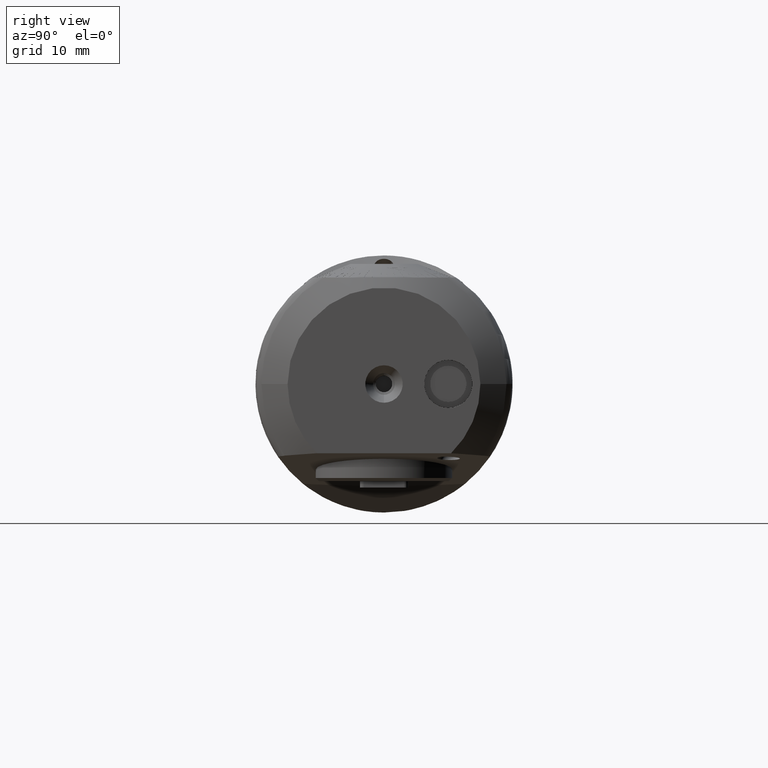
[diagram: clean part render]
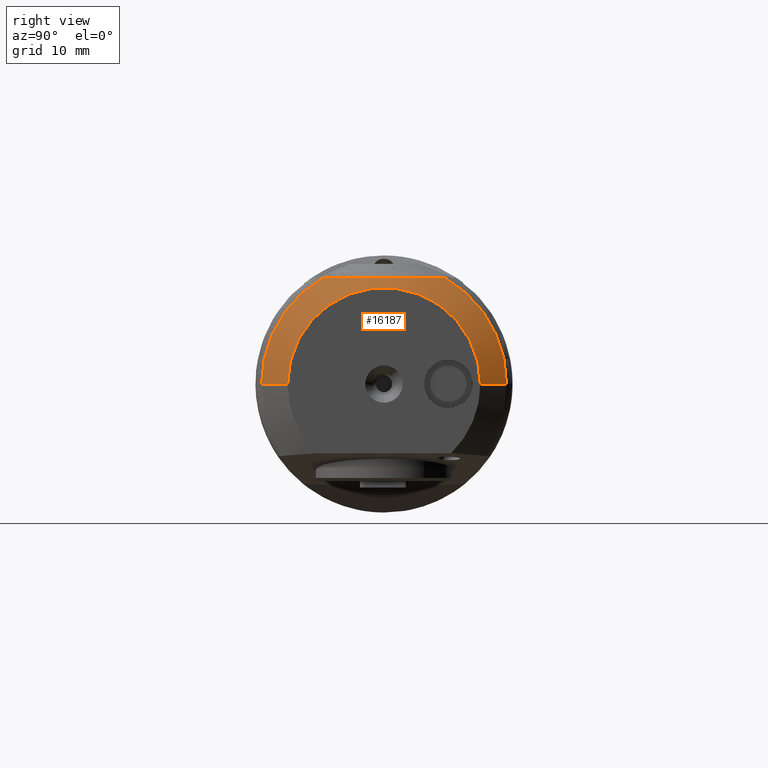
[diagram: same view with one face highlighted and labeled with its STEP entity id]
A machine part, right view. The second image highlights one B-rep face of the part: STEP entity #16187.
In plain terms, the highlighted conical surface has half-angle 60 deg.
Its self-contained STEP definition (entity closure, byte-faithful):
#144 = AXIS2_PLACEMENT_3D ( 'NONE', #17711, #17712, #17714 ) ;
#145 = AXIS2_PLACEMENT_3D ( 'NONE', #17720, #17722, #17724 ) ;
#146 = AXIS2_PLACEMENT_3D ( 'NONE', #17751, #17753, #17755 ) ;
#296 = AXIS2_PLACEMENT_3D ( 'NONE', #9091, #9088, #9087 ) ;
#1664 = CARTESIAN_POINT ( 'NONE',  ( 79.00000000000000000, -11.99999999999998800, 0.0000000000000000000 ) ) ;
#1665 = DIRECTION ( 'NONE',  ( -0.5000000000000022200, -0.8660254037844372600, 0.0000000000000000000 ) ) ;
#1942 = EDGE_LOOP ( 'NONE', ( #20114, #20115, #20116, #20117, #20118, #20119 ) ) ;
#4463 = B_SPLINE_CURVE_WITH_KNOTS ( 'NONE', 3,
 ( #17717, #17719, #17728, #17729, #17731, #17733, #17735, #17737, #17739, #17741, #17742, #17744 ),
 .UNSPECIFIED., .F., .F.,
 ( 4, 2, 2, 2, 2, 4 ),
 ( 0.005863018345209201700, 0.009671875832943814500, 0.01157630457681111900, 0.01348073332067842300, 0.01728959080841302800, 0.02109844829614763600 ),
 .UNSPECIFIED. ) ;
#8280 = VECTOR ( 'NONE', #1665, 1000.000000000000100 ) ;
#8284 = LINE ( 'NONE', #1664, #8280 ) ;
#9087 = DIRECTION ( 'NONE',  ( 0.0000000000000000000, -1.000000000000000000, 0.0000000000000000000 ) ) ;
#9088 = DIRECTION ( 'NONE',  ( -1.000000000000000000, -1.234262531949140800E-016, 0.0000000000000000000 ) ) ;
#9091 = CARTESIAN_POINT ( 'NONE',  ( 79.00000000000000000, 1.045580163399180900E-014, 0.0000000000000000000 ) ) ;
#10117 = FACE_OUTER_BOUND ( 'NONE', #1942, .T. ) ;
#10121 = CONICAL_SURFACE ( 'NONE', #296, 11.99999999999999800, 1.047197551196595000 ) ;
#11133 = EDGE_CURVE ( 'NONE', #12093, #21694, #13516, .T. ) ;
#11134 = EDGE_CURVE ( 'NONE', #12093, #21682, #13514, .T. ) ;
#11135 = EDGE_CURVE ( 'NONE', #21682, #16091, #13518, .T. ) ;
#11136 = EDGE_CURVE ( 'NONE', #16091, #21678, #4463, .T. ) ;
#11137 = EDGE_CURVE ( 'NONE', #21678, #16098, #13521, .T. ) ;
#11912 = CARTESIAN_POINT ( 'NONE',  ( 77.12361162513370500, 7.549834435270758700, 13.25000000000000400 ) ) ;
#11918 = CARTESIAN_POINT ( 'NONE',  ( 77.12361162513370500, -15.24999999999998900, 0.0000000000000000000 ) ) ;
#12093 = VERTEX_POINT ( 'NONE', #17777 ) ;
#13514 = LINE ( 'NONE', #17678, #13519 ) ;
#13516 = CIRCLE ( 'NONE', #144, 11.99999999999999800 ) ;
#13518 = CIRCLE ( 'NONE', #145, 15.25000000000000200 ) ;
#13519 = VECTOR ( 'NONE', #17679, 999.9999999999998900 ) ;
#13521 = CIRCLE ( 'NONE', #146, 15.25000000000000200 ) ;
#15313 = CARTESIAN_POINT ( 'NONE',  ( 77.12361162513370500, 15.25000000000001400, 1.867586368699714200E-015 ) ) ;
#15318 = CARTESIAN_POINT ( 'NONE',  ( 79.00000000000000000, -11.99999999999998900, 0.0000000000000000000 ) ) ;
#15327 = CARTESIAN_POINT ( 'NONE',  ( 77.12361162513370500, -7.549834435270738300, 13.25000000000000400 ) ) ;
#16091 = VERTEX_POINT ( 'NONE', #11912 ) ;
#16098 = VERTEX_POINT ( 'NONE', #11918 ) ;
#16187 = ADVANCED_FACE ( 'NONE', ( #10117 ), #10121, .T. ) ;
#17678 = CARTESIAN_POINT ( 'NONE',  ( 79.00000000000000000, 12.00000000000000900, 1.469576158976823800E-015 ) ) ;
#17679 = DIRECTION ( 'NONE',  ( -0.5000000000000026600, 0.8660254037844372600, 1.060575238724905300E-016 ) ) ;
#17711 = CARTESIAN_POINT ( 'NONE',  ( 79.00000000000000000, 1.045580163399180900E-014, 0.0000000000000000000 ) ) ;
#17712 = DIRECTION ( 'NONE',  ( 1.000000000000000000, 1.234262531949140800E-016, -0.0000000000000000000 ) ) ;
#17714 = DIRECTION ( 'NONE',  ( 0.0000000000000000000, 1.000000000000000000, 0.0000000000000000000 ) ) ;
#17717 = CARTESIAN_POINT ( 'NONE',  ( 77.12361162513370500, 7.549834435270758700, 13.25000000000000400 ) ) ;
#17719 = CARTESIAN_POINT ( 'NONE',  ( 77.47255102188579200, 6.329038571591642200, 13.25000000000000000 ) ) ;
#17720 = CARTESIAN_POINT ( 'NONE',  ( 77.12361162513370500, 1.022420604734356900E-014, 0.0000000000000000000 ) ) ;
#17722 = DIRECTION ( 'NONE',  ( 1.000000000000000000, 1.234262531949140800E-016, -0.0000000000000000000 ) ) ;
#17724 = DIRECTION ( 'NONE',  ( 0.0000000000000000000, 1.000000000000000000, 0.0000000000000000000 ) ) ;
#17728 = CARTESIAN_POINT ( 'NONE',  ( 77.76274222342721000, 5.092098429523750800, 13.25000000000000000 ) ) ;
#17729 = CARTESIAN_POINT ( 'NONE',  ( 78.06609291889145700, 3.200431558139154900, 13.25000000000000200 ) ) ;
#17731 = CARTESIAN_POINT ( 'NONE',  ( 78.14524566723979100, 2.561990542541482200, 13.25000000000000000 ) ) ;
#17733 = CARTESIAN_POINT ( 'NONE',  ( 78.25149633295532700, 1.279060834408382500, 13.25000000000000000 ) ) ;
#17735 = CARTESIAN_POINT ( 'NONE',  ( 78.27826132438310900, 0.6394861824977391400, 13.25000000000000200 ) ) ;
#17737 = CARTESIAN_POINT ( 'NONE',  ( 78.27841362357833100, -1.273491039731736700, 13.25000000000000400 ) ) ;
#17739 = CARTESIAN_POINT ( 'NONE',  ( 78.17040040951091800, -2.541056681030780400, 13.25000000000000000 ) ) ;
#17741 = CARTESIAN_POINT ( 'NONE',  ( 77.76882562264133000, -5.062882980131704800, 13.25000000000000400 ) ) ;
#17742 = CARTESIAN_POINT ( 'NONE',  ( 77.47478745214340300, -6.321214219187425000, 13.25000000000000200 ) ) ;
#17744 = CARTESIAN_POINT ( 'NONE',  ( 77.12361162513370500, -7.549834435270738300, 13.25000000000000400 ) ) ;
#17751 = CARTESIAN_POINT ( 'NONE',  ( 77.12361162513370500, 1.022420604734356900E-014, 0.0000000000000000000 ) ) ;
#17753 = DIRECTION ( 'NONE',  ( 1.000000000000000000, 1.234262531949140800E-016, -0.0000000000000000000 ) ) ;
#17755 = DIRECTION ( 'NONE',  ( 0.0000000000000000000, 1.000000000000000000, 0.0000000000000000000 ) ) ;
#17777 = CARTESIAN_POINT ( 'NONE',  ( 79.00000000000000000, 12.00000000000000900, 1.668581263838268800E-015 ) ) ;
#20114 = ORIENTED_EDGE ( 'NONE', *, *, #11133, .F. ) ;
#20115 = ORIENTED_EDGE ( 'NONE', *, *, #11134, .T. ) ;
#20116 = ORIENTED_EDGE ( 'NONE', *, *, #11135, .T. ) ;
#20117 = ORIENTED_EDGE ( 'NONE', *, *, #11136, .T. ) ;
#20118 = ORIENTED_EDGE ( 'NONE', *, *, #11137, .T. ) ;
#20119 = ORIENTED_EDGE ( 'NONE', *, *, #20962, .F. ) ;
#20962 = EDGE_CURVE ( 'NONE', #21694, #16098, #8284, .T. ) ;
#21678 = VERTEX_POINT ( 'NONE', #15327 ) ;
#21682 = VERTEX_POINT ( 'NONE', #15313 ) ;
#21694 = VERTEX_POINT ( 'NONE', #15318 ) ;